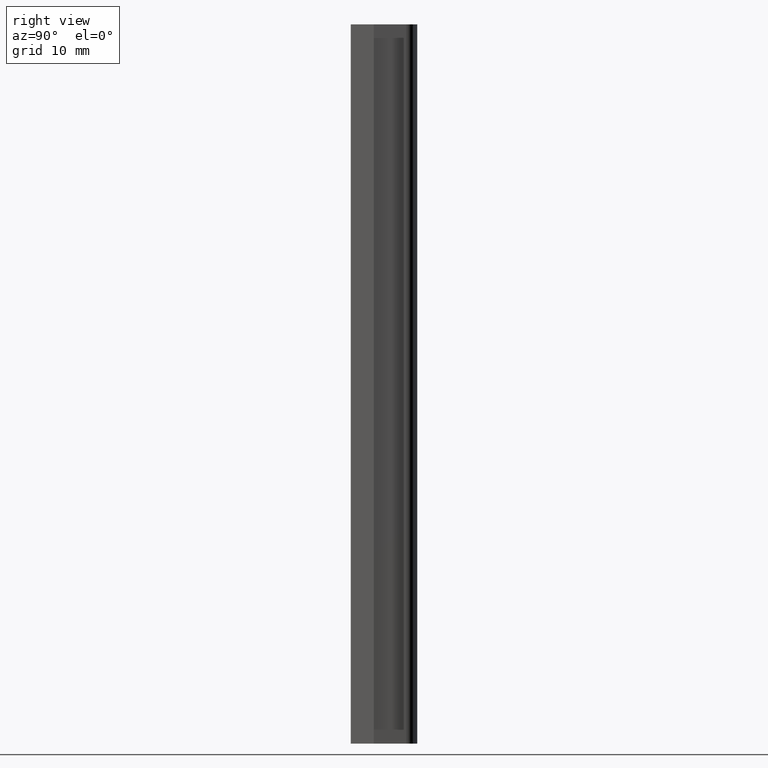
[diagram: clean part render]
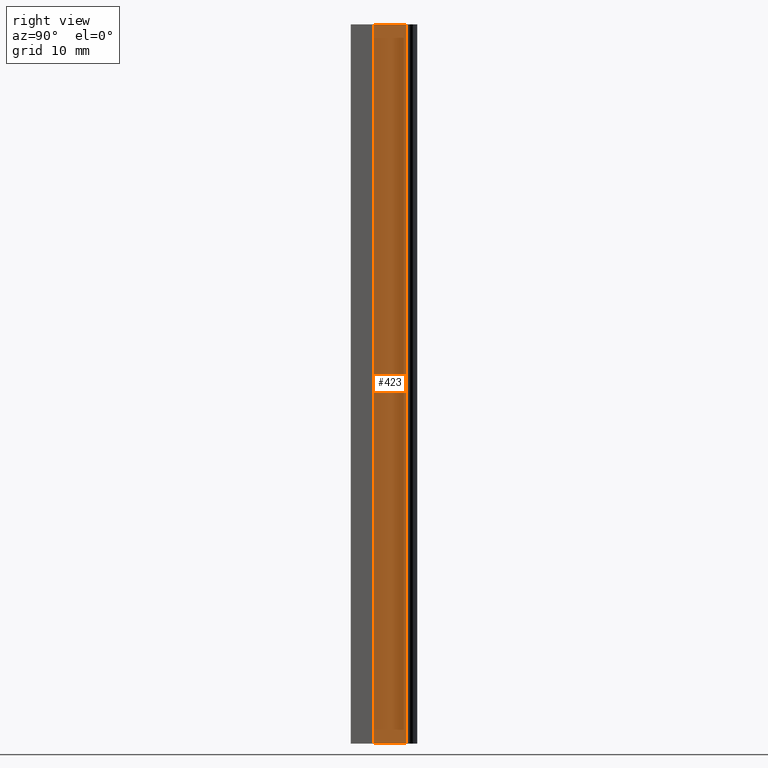
[diagram: same view with one face highlighted and labeled with its STEP entity id]
A machine part, right view. The second image highlights one B-rep face of the part: STEP entity #423.
In plain terms, the highlighted planar face has unit normal (1, 0, 0).
Its self-contained STEP definition (entity closure, byte-faithful):
#32=FACE_OUTER_BOUND('',#54,.T.);
#54=EDGE_LOOP('',(#308,#309,#310,#311));
#86=LINE('',#648,#140);
#87=LINE('',#651,#141);
#88=LINE('',#653,#142);
#89=LINE('',#654,#143);
#140=VECTOR('',#533,10.);
#141=VECTOR('',#536,10.);
#142=VECTOR('',#537,10.);
#143=VECTOR('',#538,10.);
#192=VERTEX_POINT('',#644);
#193=VERTEX_POINT('',#646);
#194=VERTEX_POINT('',#650);
#195=VERTEX_POINT('',#652);
#240=EDGE_CURVE('',#192,#193,#86,.T.);
#241=EDGE_CURVE('',#194,#192,#87,.T.);
#242=EDGE_CURVE('',#195,#193,#88,.T.);
#243=EDGE_CURVE('',#194,#195,#89,.T.);
#308=ORIENTED_EDGE('',*,*,#241,.T.);
#309=ORIENTED_EDGE('',*,*,#240,.T.);
#310=ORIENTED_EDGE('',*,*,#242,.F.);
#311=ORIENTED_EDGE('',*,*,#243,.F.);
#401=PLANE('',#471);
#423=ADVANCED_FACE('',(#32),#401,.T.);
#471=AXIS2_PLACEMENT_3D('',#649,#534,#535);
#533=DIRECTION('',(0.,0.,1.));
#534=DIRECTION('center_axis',(1.,2.46716227694479E-16,0.));
#535=DIRECTION('ref_axis',(-2.46716227694479E-16,1.,0.));
#536=DIRECTION('',(-2.46716227694479E-16,1.,0.));
#537=DIRECTION('',(-2.46716227694479E-16,1.,0.));
#538=DIRECTION('',(0.,0.,1.));
#644=CARTESIAN_POINT('',(4.1,8.32667268468867E-16,0.));
#646=CARTESIAN_POINT('',(4.1,1.11022302462516E-15,100.));
#648=CARTESIAN_POINT('',(4.1,8.32667268468867E-16,0.));
#649=CARTESIAN_POINT('Origin',(4.1,-4.5,0.));
#650=CARTESIAN_POINT('',(4.1,-4.5,0.));
#651=CARTESIAN_POINT('',(4.1,-4.5,0.));
#652=CARTESIAN_POINT('',(4.1,-4.5,100.));
#653=CARTESIAN_POINT('',(4.1,-4.5,100.));
#654=CARTESIAN_POINT('',(4.1,-4.5,0.));